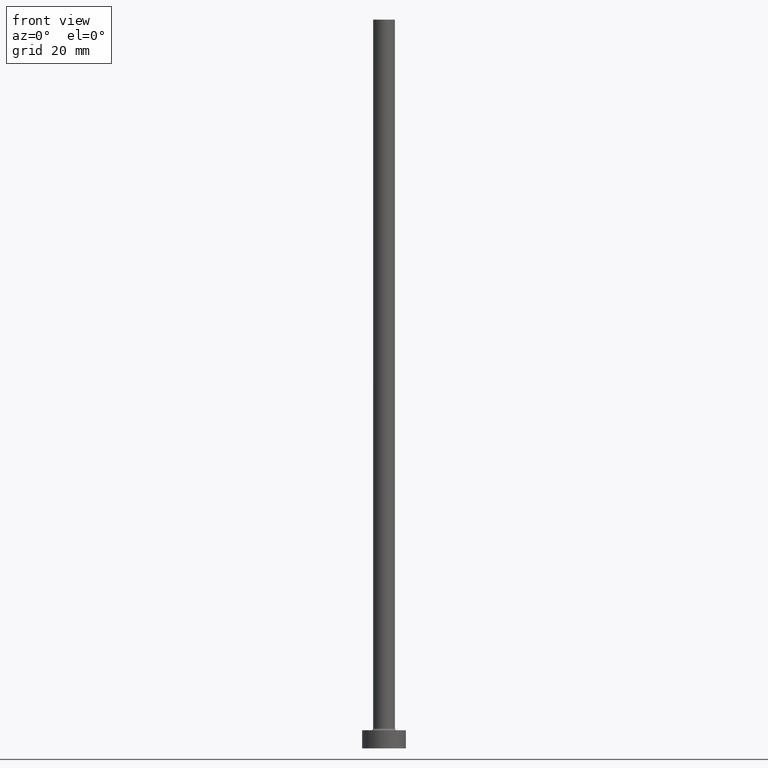
[diagram: clean part render]
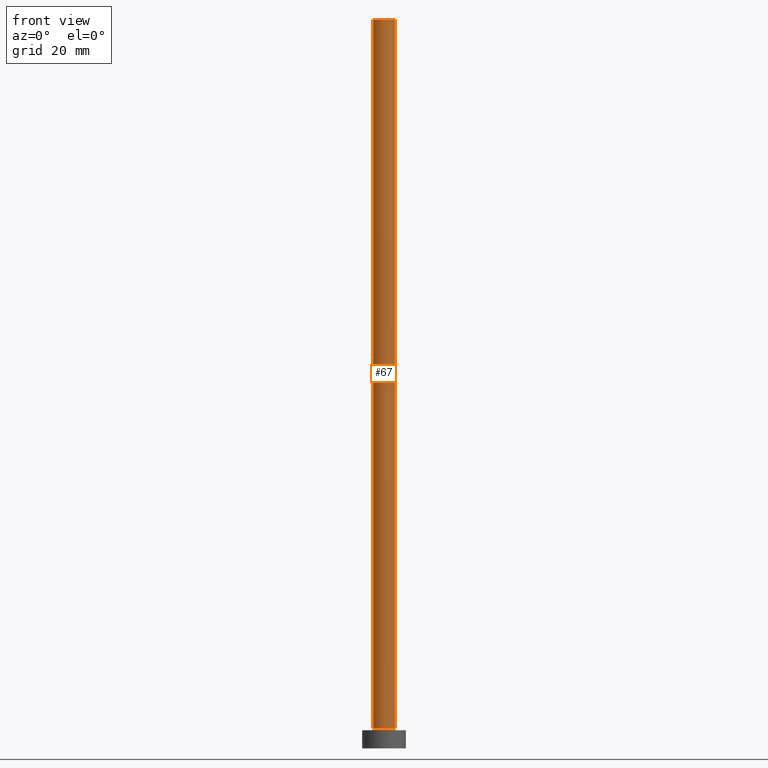
[diagram: same view with one face highlighted and labeled with its STEP entity id]
A machine part, front view. The second image highlights one B-rep face of the part: STEP entity #67.
In plain terms, the highlighted cylindrical surface (edge-blend (fillet) strip) has radius 3 mm, axis along (-0, -0, -1).
Its self-contained STEP definition (entity closure, byte-faithful):
#5 = DIRECTION ( 'NONE',  ( 1.000000000000000000, 0.000000000000000000, 0.000000000000000000 ) ) ;
#7 = LINE ( 'NONE', #283, #454 ) ;
#33 = FACE_OUTER_BOUND ( 'NONE', #361, .T. ) ;
#39 = DIRECTION ( 'NONE',  ( -1.000000000000000000, 0.000000000000000000, 0.000000000000000000 ) ) ;
#67 = ADVANCED_FACE ( 'NONE', ( #33 ), #420, .T. ) ;
#68 = EDGE_CURVE ( 'NONE', #329, #259, #383, .T. ) ;
#76 = AXIS2_PLACEMENT_3D ( 'NONE', #461, #282, #355 ) ;
#77 = EDGE_CURVE ( 'NONE', #86, #439, #7, .T. ) ;
#82 = CARTESIAN_POINT ( 'NONE',  ( -3.000000000000000444, 0.000000000000000000, 5.500000000000005329 ) ) ;
#86 = VERTEX_POINT ( 'NONE', #322 ) ;
#88 = ORIENTED_EDGE ( 'NONE', *, *, #219, .T. ) ;
#120 = EDGE_CURVE ( 'NONE', #329, #86, #246, .T. ) ;
#138 = AXIS2_PLACEMENT_3D ( 'NONE', #412, #353, #39 ) ;
#154 = CARTESIAN_POINT ( 'NONE',  ( 0.000000000000000000, 0.000000000000000000, 200.0000000000000000 ) ) ;
#164 = ORIENTED_EDGE ( 'NONE', *, *, #77, .F. ) ;
#166 = CARTESIAN_POINT ( 'NONE',  ( -3.000000000000000444, 0.000000000000000000, 200.0000000000000000 ) ) ;
#173 = AXIS2_PLACEMENT_3D ( 'NONE', #154, #292, #5 ) ;
#191 = ORIENTED_EDGE ( 'NONE', *, *, #68, .T. ) ;
#203 = ORIENTED_EDGE ( 'NONE', *, *, #120, .F. ) ;
#219 = EDGE_CURVE ( 'NONE', #259, #439, #222, .T. ) ;
#222 = CIRCLE ( 'NONE', #76, 3.000000000000000444 ) ;
#239 = CARTESIAN_POINT ( 'NONE',  ( 3.000000000000000444, 3.673940397442060361E-16, 5.500000000000005329 ) ) ;
#246 = CIRCLE ( 'NONE', #173, 3.000000000000000444 ) ;
#259 = VERTEX_POINT ( 'NONE', #82 ) ;
#282 = DIRECTION ( 'NONE',  ( 0.000000000000000000, 0.000000000000000000, 1.000000000000000000 ) ) ;
#283 = CARTESIAN_POINT ( 'NONE',  ( 3.000000000000000444, 3.673940397442060361E-16, 200.0000000000000000 ) ) ;
#292 = DIRECTION ( 'NONE',  ( 0.000000000000000000, 0.000000000000000000, 1.000000000000000000 ) ) ;
#320 = DIRECTION ( 'NONE',  ( -0.000000000000000000, -0.000000000000000000, -1.000000000000000000 ) ) ;
#322 = CARTESIAN_POINT ( 'NONE',  ( 3.000000000000000444, 3.673940397442060361E-16, 200.0000000000000000 ) ) ;
#329 = VERTEX_POINT ( 'NONE', #166 ) ;
#353 = DIRECTION ( 'NONE',  ( -0.000000000000000000, -0.000000000000000000, -1.000000000000000000 ) ) ;
#355 = DIRECTION ( 'NONE',  ( 1.000000000000000000, 0.000000000000000000, 0.000000000000000000 ) ) ;
#361 = EDGE_LOOP ( 'NONE', ( #164, #203, #191, #88 ) ) ;
#380 = VECTOR ( 'NONE', #460, 1000.000000000000000 ) ;
#383 = LINE ( 'NONE', #388, #380 ) ;
#388 = CARTESIAN_POINT ( 'NONE',  ( -3.000000000000000444, 0.000000000000000000, 200.0000000000000000 ) ) ;
#412 = CARTESIAN_POINT ( 'NONE',  ( 0.000000000000000000, 0.000000000000000000, 200.0000000000000000 ) ) ;
#420 = CYLINDRICAL_SURFACE ( 'NONE', #138, 3.000000000000000444 ) ;
#439 = VERTEX_POINT ( 'NONE', #239 ) ;
#454 = VECTOR ( 'NONE', #320, 1000.000000000000000 ) ;
#460 = DIRECTION ( 'NONE',  ( -0.000000000000000000, -0.000000000000000000, -1.000000000000000000 ) ) ;
#461 = CARTESIAN_POINT ( 'NONE',  ( 0.000000000000000000, 0.000000000000000000, 5.500000000000005329 ) ) ;